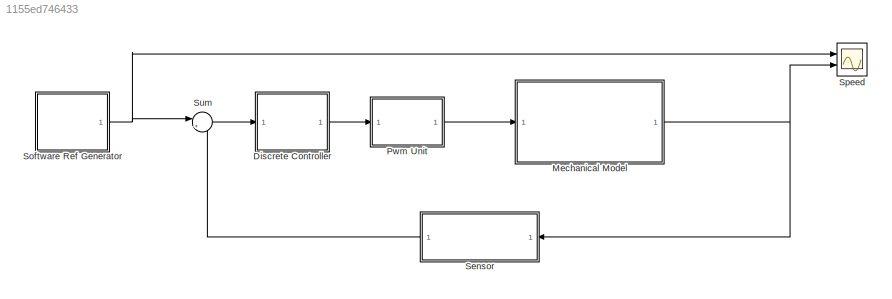
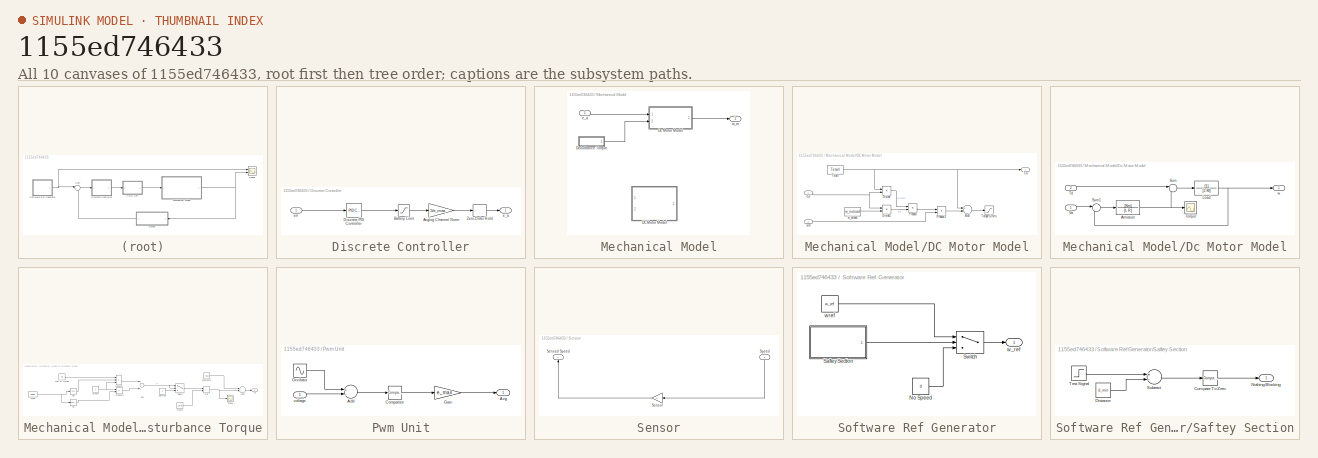
[diagram: thumbnail index - all 10 canvases of the model, root first then tree order]
MODEL slx_1155ed746433
KIND model
CONFIG AbsTol = auto
CONFIG EnableMultiTasking = off
CONFIG FixedStep = auto
CONFIG MaxStep = auto
CONFIG MinStep = auto
CONFIG RelTol = 1e-3
CONFIG SampleTimeConstraint = Unconstrained
CONFIG Solver = VariableStepAuto
CONFIG SolverName = VariableStepAuto
CONFIG StartTime = 0.0
CONFIG StopTime = 10
BLOCK [SubSystem] Discrete Controller
  Ports = [1, 1]
  RequestExecContextInheritance = off
  Variant = off
BLOCK [Gain] Discrete Controller/Anglog Channel Norm
  Gain = 5/e_max
  OutDataTypeStr = Inherit: Inherit via internal rule
  ParamDataTypeStr = Inherit: Inherit via internal rule
  SaturateOnIntegerOverflow = off
BLOCK [Saturate] Discrete Controller/Battery Limit
  InputPortMap = u0
  LowerLimit = -e_max
  Ports = [1, 1]
  UpperLimit = e_max
BLOCK [Reference] Discrete Controller/Discrete PID Controller  REF=simulink/Continuous/PID Controller
  Ports = [1, 1]
  SourceBlock = simulink/Continuous/PID Controller
  SourceType = PID 1dof
BLOCK [ZeroOrderHold] Discrete Controller/Zero-Order Hold
  SampleTime = -1
BLOCK [Outport] Discrete Controller/e_a
  IconDisplay = Port number
BLOCK [Inport] Discrete Controller/err
  IconDisplay = Port number
BLOCK [SubSystem] Mechanical Model
  Ports = [1, 1]
  RequestExecContextInheritance = off
  Variant = off
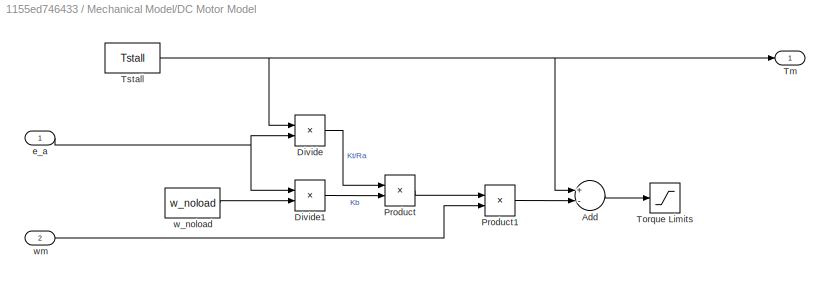
BLOCK [SubSystem] Mechanical Model/DC Motor Model
  Commented = on
  Ports = [2, 1]
  RequestExecContextInheritance = off
  Variant = off
BLOCK [Sum] Mechanical Model/DC Motor Model/Add
  InputSameDT = off
  Inputs = +-
  OutDataTypeStr = Inherit: Inherit via internal rule
  Ports = [2, 1]
  SaturateOnIntegerOverflow = off
BLOCK [Product] Mechanical Model/DC Motor Model/Divide
  InputSameDT = off
  Inputs = */
  OutDataTypeStr = Inherit: Inherit via internal rule
  Ports = [2, 1]
  RndMeth = Floor
  SaturateOnIntegerOverflow = off
BLOCK [Product] Mechanical Model/DC Motor Model/Divide1
  InputSameDT = off
  Inputs = */
  OutDataTypeStr = Inherit: Inherit via internal rule
  Ports = [2, 1]
  RndMeth = Floor
  SaturateOnIntegerOverflow = off
BLOCK [Product] Mechanical Model/DC Motor Model/Product
  InputSameDT = off
  OutDataTypeStr = Inherit: Inherit via internal rule
  Ports = [2, 1]
  RndMeth = Floor
  SaturateOnIntegerOverflow = off
BLOCK [Product] Mechanical Model/DC Motor Model/Product1
  InputSameDT = off
  OutDataTypeStr = Inherit: Inherit via internal rule
  Ports = [2, 1]
  RndMeth = Floor
  SaturateOnIntegerOverflow = off
BLOCK [Outport] Mechanical Model/DC Motor Model/Tm
  IconDisplay = Port number
BLOCK [Saturate] Mechanical Model/DC Motor Model/Torque Limits
  InputPortMap = u0
  LowerLimit = -Tstall
  Ports = [1, 1]
  UpperLimit = Tstall
BLOCK [Constant] Mechanical Model/DC Motor Model/Tstall
  Value = Tstall
BLOCK [Inport] Mechanical Model/DC Motor Model/e_a
  IconDisplay = Port number
BLOCK [Constant] Mechanical Model/DC Motor Model/w_noload
  Value = w_noload
BLOCK [Inport] Mechanical Model/DC Motor Model/wm
  IconDisplay = Port number
  Port = 2
BLOCK [SubSystem] Mechanical Model/Dc Motor Model
  Ports = [2, 1]
  RequestExecContextInheritance = off
  Variant = off
BLOCK [TransferFcn] Mechanical Model/Dc Motor Model/Armature
  Denominator = [L R]
  Numerator = [Km]
BLOCK [TransferFcn] Mechanical Model/Dc Motor Model/Load
  Denominator = [J Kf]
BLOCK [Sum] Mechanical Model/Dc Motor Model/Sum
  IconShape = round
  InputSameDT = off
  Inputs = |-+
  OutDataTypeStr = Inherit: Inherit via internal rule
  Ports = [2, 1]
  SaturateOnIntegerOverflow = off
BLOCK [Sum] Mechanical Model/Dc Motor Model/Sum1
  IconShape = round
  InputSameDT = off
  Inputs = |+-
  OutDataTypeStr = Inherit: Inherit via internal rule
  Ports = [2, 1]
  SaturateOnIntegerOverflow = off
BLOCK [Inport] Mechanical Model/Dc Motor Model/Td
  IconDisplay = Port number
  Port = 2
BLOCK [Scope] Mechanical Model/Dc Motor Model/Torque
  NumInputPorts = 1
  Ports = [1]
  ScopeSpecificationString = Simulink.scopes.TimeScopeBlockCfg('CurrentConfiguration', extmgr.ConfigurationSet(extmgr.Configuration('Core','General UI',true),extmgr.Configuration('Core','Source UI',true),extmgr.Configuration('Sources','WiredSimulink',true,'DataLoggingVariableName','ScopeData3'),extmgr.Configuration('Visuals','Time Domain',true,'SerializedDisplays',{struct('MinYLimReal','-0.56413','MaxYLimReal','5.07719','YLab...<+1367ch>
BLOCK [Inport] Mechanical Model/Dc Motor Model/Va
  IconDisplay = Port number
BLOCK [Outport] Mechanical Model/Dc Motor Model/w
  IconDisplay = Port number
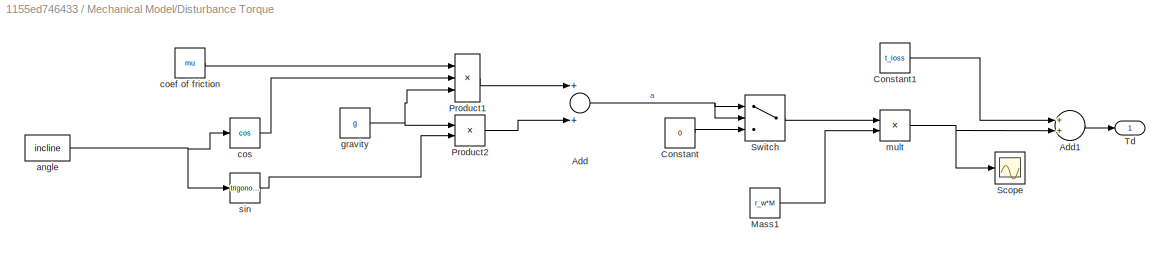
BLOCK [SubSystem] Mechanical Model/Disturbance Torque
  Ports = [0, 1]
  RequestExecContextInheritance = off
  Variant = off
BLOCK [Sum] Mechanical Model/Disturbance Torque/Add
  InputSameDT = off
  OutDataTypeStr = Inherit: Inherit via internal rule
  Ports = [2, 1]
  SaturateOnIntegerOverflow = off
BLOCK [Sum] Mechanical Model/Disturbance Torque/Add1
  InputSameDT = off
  OutDataTypeStr = Inherit: Inherit via internal rule
  Ports = [2, 1]
  SaturateOnIntegerOverflow = off
BLOCK [Constant] Mechanical Model/Disturbance Torque/Constant
  Value = 0
BLOCK [Constant] Mechanical Model/Disturbance Torque/Constant1
  Value = t_loss
BLOCK [Constant] Mechanical Model/Disturbance Torque/Mass1
  Value = r_w*M
BLOCK [Product] Mechanical Model/Disturbance Torque/Product1
  InputSameDT = off
  Inputs = 3
  OutDataTypeStr = Inherit: Inherit via internal rule
  Ports = [3, 1]
  RndMeth = Floor
  SaturateOnIntegerOverflow = off
BLOCK [Product] Mechanical Model/Disturbance Torque/Product2
  InputSameDT = off
  OutDataTypeStr = Inherit: Inherit via internal rule
  Ports = [2, 1]
  RndMeth = Floor
  SaturateOnIntegerOverflow = off
BLOCK [Scope] Mechanical Model/Disturbance Torque/Scope
  NumInputPorts = 1
  Ports = [1]
  ScopeSpecificationString = Simulink.scopes.TimeScopeBlockCfg('CurrentConfiguration', extmgr.ConfigurationSet(extmgr.Configuration('Core','General UI',true),extmgr.Configuration('Core','Source UI',true),extmgr.Configuration('Sources','WiredSimulink',true,'DataLoggingVariableName','ScopeData2'),extmgr.Configuration('Visuals','Time Domain',true,'SerializedDisplays',{struct('MinYLimReal','2.92','MaxYLimReal','4.92','YLabelReal'...<+1338ch>
BLOCK [Switch] Mechanical Model/Disturbance Torque/Switch
  Criteria = u2 > Threshold
  InputSameDT = off
  SaturateOnIntegerOverflow = off
BLOCK [Outport] Mechanical Model/Disturbance Torque/Td
  IconDisplay = Port number
BLOCK [Constant] Mechanical Model/Disturbance Torque/angle
  Value = incline
BLOCK [Constant] Mechanical Model/Disturbance Torque/coef of friction
  Value = mu
BLOCK [Trigonometry] Mechanical Model/Disturbance Torque/cos
  Operator = cos
  Ports = [1, 1]
BLOCK [Constant] Mechanical Model/Disturbance Torque/gravity
  Value = g
BLOCK [Product] Mechanical Model/Disturbance Torque/mult 
  InputSameDT = off
  Inputs = **
  OutDataTypeStr = Inherit: Inherit via internal rule
  Ports = [2, 1]
  RndMeth = Floor
  SaturateOnIntegerOverflow = off
BLOCK [Trigonometry] Mechanical Model/Disturbance Torque/sin
  Ports = [1, 1]
BLOCK [Inport] Mechanical Model/e_a
  IconDisplay = Port number
BLOCK [Outport] Mechanical Model/w_m
  IconDisplay = Port number
BLOCK [SubSystem] Pwm Unit
  Ports = [1, 1]
  RequestExecContextInheritance = off
  Variant = off
BLOCK [Sum] Pwm Unit/Add
  InputSameDT = off
  Inputs = +-
  OutDataTypeStr = Inherit: Inherit via internal rule
  Ports = [2, 1]
  SaturateOnIntegerOverflow = off
BLOCK [Outport] Pwm Unit/Avg
  IconDisplay = Port number
BLOCK [Reference] Pwm Unit/Comparitor  REF=simulink/Logic and Bit
Operations/Compare
To Zero
  Ports = [1, 1]
  SourceBlock = simulink/Logic and Bit\nOperations/Compare\nTo Zero
  SourceType = Compare To Zero
BLOCK [Gain] Pwm Unit/Gain
  Gain = e_max
  OutDataTypeStr = Inherit: Inherit via internal rule
  ParamDataTypeStr = Inherit: Inherit via internal rule
  SaturateOnIntegerOverflow = off
BLOCK [Sin] Pwm Unit/Occilator
  Amplitude = 5
  Ports = [0, 1]
  SampleTime = 0
BLOCK [Inport] Pwm Unit/voltage
  IconDisplay = Port number
BLOCK [SubSystem] Sensor
  Ports = [1, 1]
  RequestExecContextInheritance = off
  Variant = off
BLOCK [Outport] Sensor/Sensed Speed
  IconDisplay = Port number
BLOCK [Gain] Sensor/Sensor
  OutDataTypeStr = Inherit: Inherit via internal rule
  ParamDataTypeStr = Inherit: Inherit via internal rule
  SaturateOnIntegerOverflow = off
BLOCK [Inport] Sensor/Speed
  IconDisplay = Port number
BLOCK [SubSystem] Software Ref Generator
  Ports = [0, 1]
  RequestExecContextInheritance = off
  Variant = off
BLOCK [Constant] Software Ref Generator/No Speed
  Value = 0
BLOCK [SubSystem] Software Ref Generator/Saftey Section
  Ports = [0, 1]
  RequestExecContextInheritance = off
  Variant = off
BLOCK [Reference] Software Ref Generator/Saftey Section/Compare To Zero  REF=simulink/Logic and Bit
Operations/Compare
To Zero
  Ports = [1, 1]
  SourceBlock = simulink/Logic and Bit\nOperations/Compare\nTo Zero
  SourceType = Compare To Zero
BLOCK [Constant] Software Ref Generator/Saftey Section/Distance
  Value = d_min
BLOCK [Outport] Software Ref Generator/Saftey Section/Nothing Blocking
  IconDisplay = Port number
BLOCK [Sum] Software Ref Generator/Saftey Section/Subtract
  InputSameDT = off
  Inputs = +-
  OutDataTypeStr = Inherit: Inherit via internal rule
  Ports = [2, 1]
  SaturateOnIntegerOverflow = off
BLOCK [Step] Software Ref Generator/Saftey Section/Test Signal 
  After = 12
  SampleTime = 0
  Time = 0
BLOCK [Switch] Software Ref Generator/Switch
  Criteria = u2 > Threshold
  InputSameDT = off
  SaturateOnIntegerOverflow = off
BLOCK [Outport] Software Ref Generator/w_ref
  IconDisplay = Port number
BLOCK [Constant] Software Ref Generator/wref
  Value = w_ref
BLOCK [Scope] Speed
  NumInputPorts = 2
  Ports = [2]
  ScopeSpecificationString = Simulink.scopes.TimeScopeBlockCfg('CurrentConfiguration', extmgr.ConfigurationSet(extmgr.Configuration('Core','General UI',true),extmgr.Configuration('Core','Source UI',true),extmgr.Configuration('Sources','WiredSimulink',true,'DataLoggingVariableName','ScopeData1'),extmgr.Configuration('Visuals','Time Domain',true,'SerializedDisplays',{struct('MinYLimReal','-6.15366','MaxYLimReal','35.59032','YLa...<+1408ch>
BLOCK [Sum] Sum
  IconShape = round
  InputSameDT = off
  Inputs = |+-
  OutDataTypeStr = Inherit: Inherit via internal rule
  Ports = [2, 1]
  SaturateOnIntegerOverflow = off
LINE Discrete Controller/Anglog Channel Norm:1 -> Discrete Controller/Zero-Order Hold:1
LINE Discrete Controller/Battery Limit:1 -> Discrete Controller/Anglog Channel Norm:1
LINE Discrete Controller/Discrete PID Controller:1 -> Discrete Controller/Battery Limit:1
LINE Discrete Controller/Zero-Order Hold:1 -> Discrete Controller/e_a:1
LINE Discrete Controller/err:1 -> Discrete Controller/Discrete PID Controller:1
LINE Discrete Controller:1 -> Pwm Unit:1
LINE Mechanical Model/DC Motor Model/Add:1 -> Mechanical Model/DC Motor Model/Torque Limits:1
LINE Mechanical Model/DC Motor Model/Divide1:1 -> Mechanical Model/DC Motor Model/Product:2
LINE Mechanical Model/DC Motor Model/Divide:1 -> Mechanical Model/DC Motor Model/Product:1
LINE Mechanical Model/DC Motor Model/Product1:1 -> Mechanical Model/DC Motor Model/Add:2
LINE Mechanical Model/DC Motor Model/Product:1 -> Mechanical Model/DC Motor Model/Product1:1
NET Mechanical Model/DC Motor Model/Tstall:1 -> Mechanical Model/DC Motor Model/Add:1, Mechanical Model/DC Motor Model/Divide:1, Mechanical Model/DC Motor Model/Tm:1
NET Mechanical Model/DC Motor Model/e_a:1 -> Mechanical Model/DC Motor Model/Divide1:1, Mechanical Model/DC Motor Model/Divide:2
LINE Mechanical Model/DC Motor Model/w_noload:1 -> Mechanical Model/DC Motor Model/Divide1:2
LINE Mechanical Model/DC Motor Model/wm:1 -> Mechanical Model/DC Motor Model/Product1:2
NET Mechanical Model/Dc Motor Model/Armature:1 -> Mechanical Model/Dc Motor Model/Sum:2, Mechanical Model/Dc Motor Model/Torque:1
NET Mechanical Model/Dc Motor Model/Load:1 -> Mechanical Model/Dc Motor Model/Sum1:2, Mechanical Model/Dc Motor Model/w:1
LINE Mechanical Model/Dc Motor Model/Sum1:1 -> Mechanical Model/Dc Motor Model/Armature:1
LINE Mechanical Model/Dc Motor Model/Sum:1 -> Mechanical Model/Dc Motor Model/Load:1
LINE Mechanical Model/Dc Motor Model/Td:1 -> Mechanical Model/Dc Motor Model/Sum:1
LINE Mechanical Model/Dc Motor Model/Va:1 -> Mechanical Model/Dc Motor Model/Sum1:1
LINE Mechanical Model/Dc Motor Model:1 -> Mechanical Model/w_m:1
LINE Mechanical Model/Disturbance Torque/Add1:1 -> Mechanical Model/Disturbance Torque/Td:1
NET Mechanical Model/Disturbance Torque/Add:1 -> Mechanical Model/Disturbance Torque/Switch:1, Mechanical Model/Disturbance Torque/Switch:2
LINE Mechanical Model/Disturbance Torque/Constant1:1 -> Mechanical Model/Disturbance Torque/Add1:1
LINE Mechanical Model/Disturbance Torque/Constant:1 -> Mechanical Model/Disturbance Torque/Switch:3
LINE Mechanical Model/Disturbance Torque/Mass1:1 -> Mechanical Model/Disturbance Torque/mult :2
LINE Mechanical Model/Disturbance Torque/Product1:1 -> Mechanical Model/Disturbance Torque/Add:1
LINE Mechanical Model/Disturbance Torque/Product2:1 -> Mechanical Model/Disturbance Torque/Add:2
LINE Mechanical Model/Disturbance Torque/Switch:1 -> Mechanical Model/Disturbance Torque/mult :1
NET Mechanical Model/Disturbance Torque/angle:1 -> Mechanical Model/Disturbance Torque/cos:1, Mechanical Model/Disturbance Torque/sin:1
LINE Mechanical Model/Disturbance Torque/coef of friction:1 -> Mechanical Model/Disturbance Torque/Product1:1
LINE Mechanical Model/Disturbance Torque/cos:1 -> Mechanical Model/Disturbance Torque/Product1:2
NET Mechanical Model/Disturbance Torque/gravity:1 -> Mechanical Model/Disturbance Torque/Product1:3, Mechanical Model/Disturbance Torque/Product2:1
NET Mechanical Model/Disturbance Torque/mult :1 -> Mechanical Model/Disturbance Torque/Add1:2, Mechanical Model/Disturbance Torque/Scope:1
LINE Mechanical Model/Disturbance Torque/sin:1 -> Mechanical Model/Disturbance Torque/Product2:2
LINE Mechanical Model/Disturbance Torque:1 -> Mechanical Model/Dc Motor Model:2
LINE Mechanical Model/e_a:1 -> Mechanical Model/Dc Motor Model:1
NET Mechanical Model:1 -> Sensor:1, Speed:2
LINE Pwm Unit/Add:1 -> Pwm Unit/Comparitor:1
LINE Pwm Unit/Comparitor:1 -> Pwm Unit/Gain:1
LINE Pwm Unit/Gain:1 -> Pwm Unit/Avg:1
LINE Pwm Unit/Occilator:1 -> Pwm Unit/Add:1
LINE Pwm Unit/voltage:1 -> Pwm Unit/Add:2
LINE Pwm Unit:1 -> Mechanical Model:1
LINE Sensor/Sensor:1 -> Sensor/Sensed Speed:1
LINE Sensor/Speed:1 -> Sensor/Sensor:1
LINE Sensor:1 -> Sum:2
LINE Software Ref Generator/No Speed:1 -> Software Ref Generator/Switch:3
LINE Software Ref Generator/Saftey Section/Compare To Zero:1 -> Software Ref Generator/Saftey Section/Nothing Blocking:1
LINE Software Ref Generator/Saftey Section/Distance:1 -> Software Ref Generator/Saftey Section/Subtract:2
LINE Software Ref Generator/Saftey Section/Subtract:1 -> Software Ref Generator/Saftey Section/Compare To Zero:1
LINE Software Ref Generator/Saftey Section/Test Signal :1 -> Software Ref Generator/Saftey Section/Subtract:1
LINE Software Ref Generator/Saftey Section:1 -> Software Ref Generator/Switch:2
LINE Software Ref Generator/Switch:1 -> Software Ref Generator/w_ref:1
LINE Software Ref Generator/wref:1 -> Software Ref Generator/Switch:1
NET Software Ref Generator:1 -> Speed:1, Sum:1
LINE Sum:1 -> Discrete Controller:1
note: NET lines group one-source signal fan-out (src -> all destinations, sorted); 1:1 wires keep LINE
